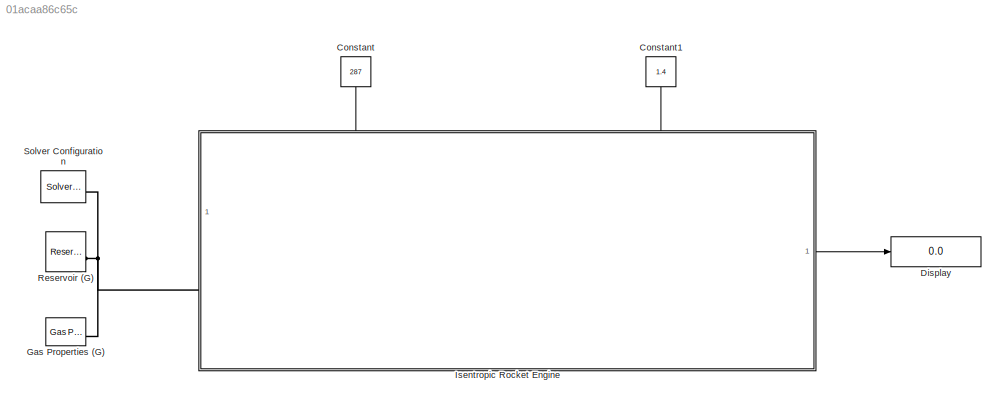
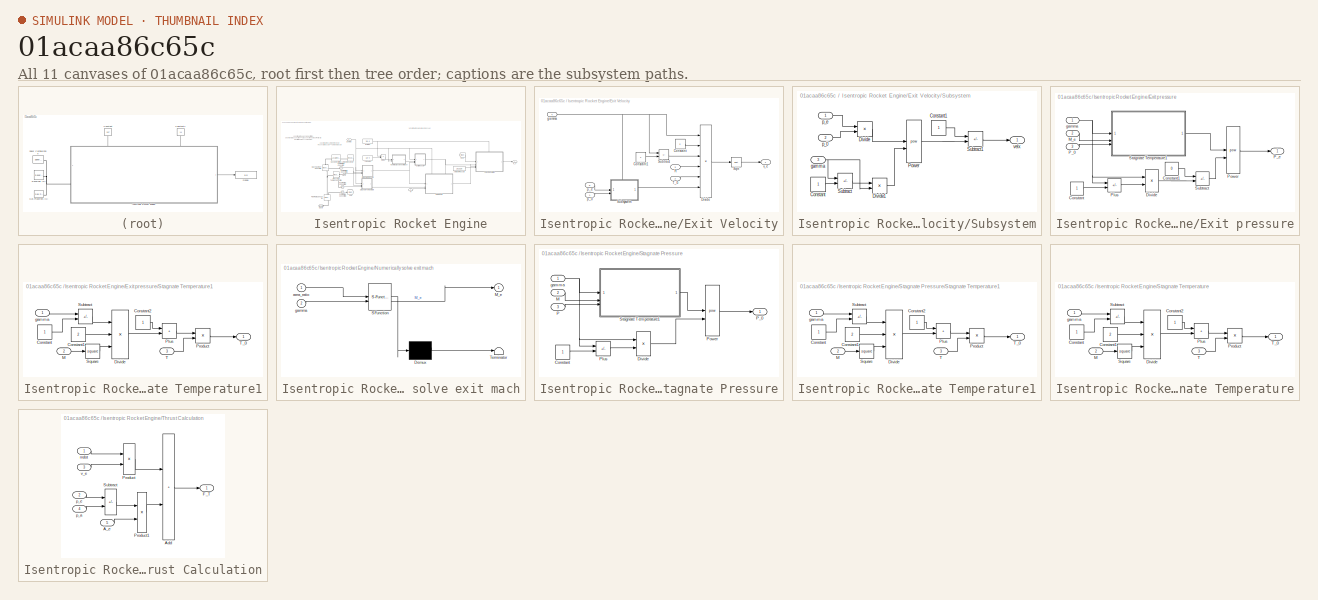
[diagram: thumbnail index - all 11 canvases of the model, root first then tree order]
MODEL slx_01acaa86c65c
KIND model
CONFIG AbsTol = auto
CONFIG EnableMultiTasking = off
CONFIG FixedStep = auto
CONFIG MaxStep = auto
CONFIG MinStep = auto
CONFIG RelTol = 1e-3
CONFIG SampleTimeConstraint = Unconstrained
CONFIG SolverName = VariableStepAuto
CONFIG StartTime = 0.0
CONFIG StopTime = 10.0
BLOCK [Constant] Constant
  NameLocation = left
  Value = 287
BLOCK [Constant] Constant1
  NameLocation = left
  Value = 1.4
BLOCK [Display] Display
  Decimation = 1
BLOCK [Reference] Gas Properties (G)  REF=fl_lib/Gas/Utilities/Gas Properties (G)
  SourceBlock = fl_lib/Gas/Utilities/Gas Properties (G)
  SourceType = Gas Properties (G)
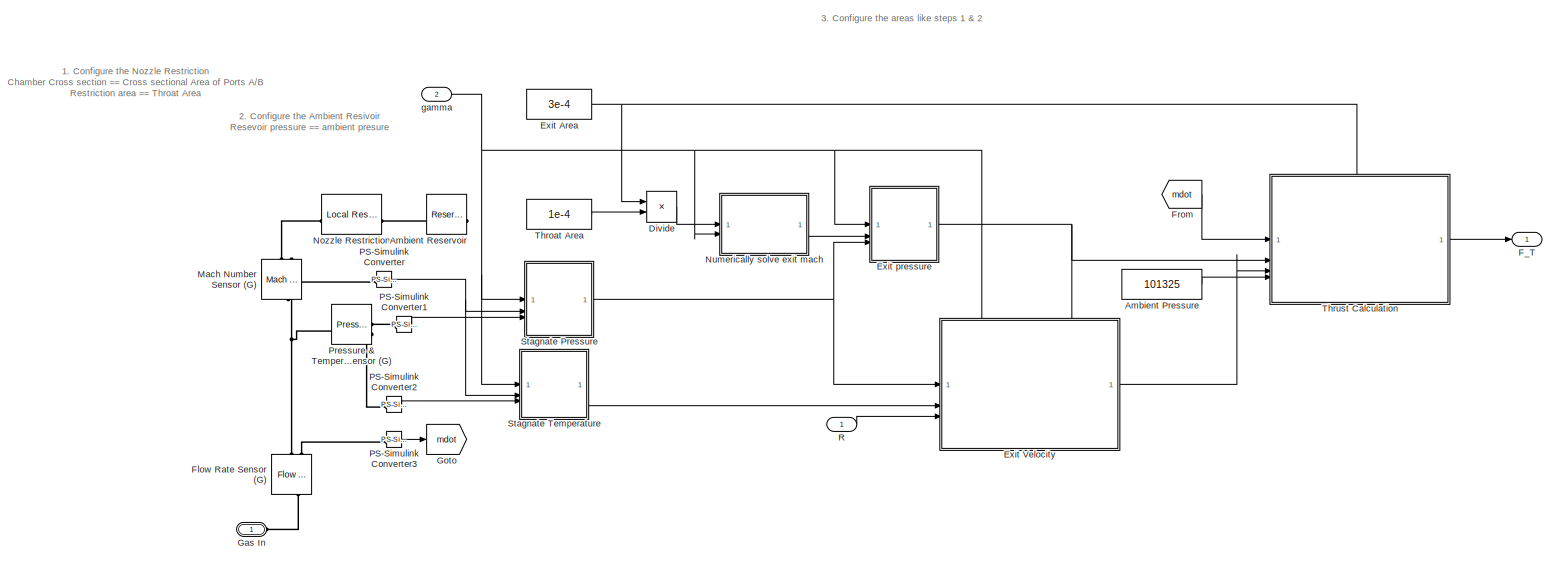
[diagram: Isentropic Rocket Engine - part 1/1, most of the canvas]
BLOCK [SubSystem] Isentropic Rocket Engine
  PortSchema = {"entries":[{"content":{"sides":[{"content":{"connectorIds":["LConn1"]},"type":"ConnectorPlacement.EquallySpacedRectSide","uuid":"e4f0069d-1927-4802-abd1-d8cb29c43114"},{"content":{"connectorIds":["Out1"],"side":"RIGHT"},"type":"ConnectorPlacement.EquallySpacedRectSide","uuid":"0b098238-568a-4ba0-ac8f-0646f834991b"},{"content":{"connectorIds":["In1","In2"],"side":"TOP"},"type":"ConnectorPlacement....<+254ch>
BLOCK [Constant] Isentropic Rocket Engine/Ambient Pressure
  Value = 101325
BLOCK [Reference] Isentropic Rocket Engine/Ambient Reservoir  REF=fl_lib/Gas/Elements/Reservoir (G)
  SourceBlock = fl_lib/Gas/Elements/Reservoir (G)
  SourceType = Reservoir (G)
BLOCK [Product] Isentropic Rocket Engine/Divide
  Inputs = */
BLOCK [Constant] Isentropic Rocket Engine/Exit Area
  Value = 3e-4
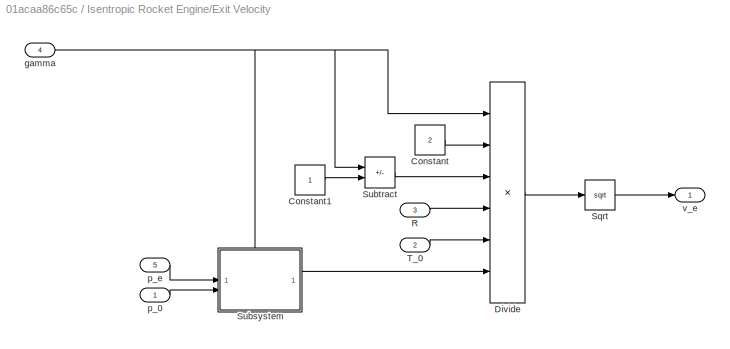
BLOCK [SubSystem] Isentropic Rocket Engine/Exit Velocity
  PortSchema = {"entries":[{"content":{"sides":[{"content":{"connectorIds":["In1","In2","In3"]},"type":"ConnectorPlacement.EquallySpacedRectSide","uuid":"9662f2ce-6bfa-421c-bf6e-2b5a914169e1"},{"content":{"connectorIds":["Out1"],"side":"RIGHT"},"type":"ConnectorPlacement.EquallySpacedRectSide","uuid":"c1c18a70-1766-4293-aa61-9a3b121d2f3e"},{"content":{"connectorIds":["In4","In5"],"side":"TOP"},"type":"ConnectorP...<+263ch>
BLOCK [Constant] Isentropic Rocket Engine/Exit Velocity/Constant
  Value = 2
BLOCK [Constant] Isentropic Rocket Engine/Exit Velocity/Constant1
BLOCK [Product] Isentropic Rocket Engine/Exit Velocity/Divide
  Inputs = **/***
BLOCK [Inport] Isentropic Rocket Engine/Exit Velocity/R
  Port = 3
BLOCK [Sqrt] Isentropic Rocket Engine/Exit Velocity/Sqrt
BLOCK [SubSystem] Isentropic Rocket Engine/Exit Velocity/Subsystem
  PortSchema = {"entries":[{"content":{"sides":[{"content":{"connectorIds":["In1","In2"]},"type":"ConnectorPlacement.EquallySpacedRectSide","uuid":"80528716-0a09-4b76-bb3b-dedd14436ef6"},{"content":{"connectorIds":["Out1"],"side":"RIGHT"},"type":"ConnectorPlacement.EquallySpacedRectSide","uuid":"42bd620c-9479-4472-9344-ba1c598547ab"},{"content":{"connectorIds":["In3"],"side":"TOP"},"type":"ConnectorPlacement.Equ...<+251ch>
BLOCK [Constant] Isentropic Rocket Engine/Exit Velocity/Subsystem/Constant
BLOCK [Constant] Isentropic Rocket Engine/Exit Velocity/Subsystem/Constant1
BLOCK [Product] Isentropic Rocket Engine/Exit Velocity/Subsystem/Divide
  Inputs = */
BLOCK [Product] Isentropic Rocket Engine/Exit Velocity/Subsystem/Divide1
  Inputs = */
BLOCK [Math] Isentropic Rocket Engine/Exit Velocity/Subsystem/Power
  Operator = pow
BLOCK [Sum] Isentropic Rocket Engine/Exit Velocity/Subsystem/Subtract
  IconShape = rectangular
  Inputs = +-
BLOCK [Sum] Isentropic Rocket Engine/Exit Velocity/Subsystem/Subtract1
  IconShape = rectangular
  Inputs = +-
BLOCK [Inport] Isentropic Rocket Engine/Exit Velocity/Subsystem/gamma
  Port = 3
BLOCK [Inport] Isentropic Rocket Engine/Exit Velocity/Subsystem/p_0
  Port = 2
BLOCK [Inport] Isentropic Rocket Engine/Exit Velocity/Subsystem/p_e
BLOCK [Outport] Isentropic Rocket Engine/Exit Velocity/Subsystem/velx
BLOCK [Sum] Isentropic Rocket Engine/Exit Velocity/Subtract
  IconShape = rectangular
  Inputs = +-
BLOCK [Inport] Isentropic Rocket Engine/Exit Velocity/T_0
  Port = 2
BLOCK [Inport] Isentropic Rocket Engine/Exit Velocity/gamma
  Port = 4
BLOCK [Inport] Isentropic Rocket Engine/Exit Velocity/p_0
BLOCK [Inport] Isentropic Rocket Engine/Exit Velocity/p_e
  Port = 5
BLOCK [Outport] Isentropic Rocket Engine/Exit Velocity/v_e
BLOCK [SubSystem] Isentropic Rocket Engine/Exit pressure
BLOCK [Constant] Isentropic Rocket Engine/Exit pressure/Constant
BLOCK [Constant] Isentropic Rocket Engine/Exit pressure/Constant1
  Value = 0
BLOCK [Product] Isentropic Rocket Engine/Exit pressure/Divide
  Inputs = */
BLOCK [Inport] Isentropic Rocket Engine/Exit pressure/M_e
  Port = 2
BLOCK [Inport] Isentropic Rocket Engine/Exit pressure/P_0
  Port = 3
BLOCK [Outport] Isentropic Rocket Engine/Exit pressure/P_e
BLOCK [Sum] Isentropic Rocket Engine/Exit pressure/Plus
  IconShape = rectangular
  Inputs = +-
BLOCK [Math] Isentropic Rocket Engine/Exit pressure/Power
  Operator = pow
BLOCK [SubSystem] Isentropic Rocket Engine/Exit pressure/Stagnate Temperature1
BLOCK [Constant] Isentropic Rocket Engine/Exit pressure/Stagnate Temperature1/Constant
BLOCK [Constant] Isentropic Rocket Engine/Exit pressure/Stagnate Temperature1/Constant1
  Value = 2
BLOCK [Constant] Isentropic Rocket Engine/Exit pressure/Stagnate Temperature1/Constant2
BLOCK [Product] Isentropic Rocket Engine/Exit pressure/Stagnate Temperature1/Divide
  Inputs = */*
BLOCK [Inport] Isentropic Rocket Engine/Exit pressure/Stagnate Temperature1/M
  Port = 2
BLOCK [Sum] Isentropic Rocket Engine/Exit pressure/Stagnate Temperature1/Plus
  IconShape = rectangular
BLOCK [Product] Isentropic Rocket Engine/Exit pressure/Stagnate Temperature1/Product
BLOCK [Math] Isentropic Rocket Engine/Exit pressure/Stagnate Temperature1/Square
  Operator = square
BLOCK [Sum] Isentropic Rocket Engine/Exit pressure/Stagnate Temperature1/Subtract
  IconShape = rectangular
  Inputs = +-
BLOCK [Inport] Isentropic Rocket Engine/Exit pressure/Stagnate Temperature1/T
  Port = 3
BLOCK [Outport] Isentropic Rocket Engine/Exit pressure/Stagnate Temperature1/T_0
BLOCK [Inport] Isentropic Rocket Engine/Exit pressure/Stagnate Temperature1/gamma
BLOCK [Sum] Isentropic Rocket Engine/Exit pressure/Subtract
  IconShape = rectangular
  Inputs = +-
BLOCK [Inport] Isentropic Rocket Engine/Exit pressure/gamma
BLOCK [Outport] Isentropic Rocket Engine/F_T
BLOCK [Reference] Isentropic Rocket Engine/Flow Rate Sensor (G)  REF=fl_lib/Gas/Sensors/Flow Rate Sensor (G)
  NameLocation = right
  SourceBlock = fl_lib/Gas/Sensors/Flow Rate Sensor (G)
  SourceType = Flow Rate Sensor (G)
BLOCK [From] Isentropic Rocket Engine/From
  GotoTag = mdot
BLOCK [PMIOPort] Isentropic Rocket Engine/Gas In
  Side = Left
BLOCK [Goto] Isentropic Rocket Engine/Goto
  GotoTag = mdot
BLOCK [Reference] Isentropic Rocket Engine/Mach Number Sensor (G)  REF=fl_lib/Gas/Sensors/Mach Number Sensor
(G)
  NameLocation = right
  SourceBlock = fl_lib/Gas/Sensors/Mach Number Sensor\n(G)
  SourceType = Mach Number Sensor\n(G)
BLOCK [Reference] Isentropic Rocket Engine/Nozzle Restriction  REF=fl_lib/Gas/Elements/Local Restriction
(G)
  SourceBlock = fl_lib/Gas/Elements/Local Restriction\n(G)
  SourceType = Local Restriction\n(G)
BLOCK [SubSystem] Isentropic Rocket Engine/Numerically solve exit mach
  ErrorFcn = Stateflow.Translate.translate
  PermitHierarchicalResolution = ExplicitOnly
  SFBlockType = MATLAB Function
  TreatAsAtomicUnit = on
BLOCK [Demux] Isentropic Rocket Engine/Numerically solve exit mach/ Demux 
  Outputs = 1
BLOCK [S-Function] Isentropic Rocket Engine/Numerically solve exit mach/ SFunction 
  EnableBusSupport = on
  FunctionName = sf_sfun
  PortCounts = [2 2]
  SFcnIsStateOwnerBlock = off
  SFunctionDeploymentMode = off
  Tag = Stateflow S-Function 2
BLOCK [Terminator] Isentropic Rocket Engine/Numerically solve exit mach/ Terminator 
BLOCK [Outport] Isentropic Rocket Engine/Numerically solve exit mach/M_e
BLOCK [Inport] Isentropic Rocket Engine/Numerically solve exit mach/area_ratio
BLOCK [Inport] Isentropic Rocket Engine/Numerically solve exit mach/gamma
  Port = 2
BLOCK [Reference] Isentropic Rocket Engine/PS-Simulink Converter  REF=nesl_utility/PS-Simulink
Converter
  SourceBlock = nesl_utility/PS-Simulink\nConverter
  SourceType = PS-Simulink\nConverter
BLOCK [Reference] Isentropic Rocket Engine/PS-Simulink Converter1  REF=nesl_utility/PS-Simulink
Converter
  SourceBlock = nesl_utility/PS-Simulink\nConverter
  SourceType = PS-Simulink\nConverter
BLOCK [Reference] Isentropic Rocket Engine/PS-Simulink Converter2  REF=nesl_utility/PS-Simulink
Converter
  SourceBlock = nesl_utility/PS-Simulink\nConverter
  SourceType = PS-Simulink\nConverter
BLOCK [Reference] Isentropic Rocket Engine/PS-Simulink Converter3  REF=nesl_utility/PS-Simulink
Converter
  SourceBlock = nesl_utility/PS-Simulink\nConverter
  SourceType = PS-Simulink\nConverter
BLOCK [Reference] Isentropic Rocket Engine/Pressure & Temperature Sensor (G)  REF=fl_lib/Gas/Sensors/Pressure &
Temperature Sensor
(G)
  SourceBlock = fl_lib/Gas/Sensors/Pressure &\nTemperature Sensor\n(G)
  SourceType = Pressure &\nTemperature Sensor\n(G)
BLOCK [Inport] Isentropic Rocket Engine/R
BLOCK [SubSystem] Isentropic Rocket Engine/Stagnate Pressure
BLOCK [Constant] Isentropic Rocket Engine/Stagnate Pressure/Constant
BLOCK [Product] Isentropic Rocket Engine/Stagnate Pressure/Divide
  Inputs = */
BLOCK [Inport] Isentropic Rocket Engine/Stagnate Pressure/M
  Port = 2
BLOCK [Inport] Isentropic Rocket Engine/Stagnate Pressure/P
  Port = 3
BLOCK [Outport] Isentropic Rocket Engine/Stagnate Pressure/P_0
BLOCK [Sum] Isentropic Rocket Engine/Stagnate Pressure/Plus
  IconShape = rectangular
  Inputs = +-
BLOCK [Math] Isentropic Rocket Engine/Stagnate Pressure/Power
  Operator = pow
BLOCK [SubSystem] Isentropic Rocket Engine/Stagnate Pressure/Stagnate Temperature1
BLOCK [Constant] Isentropic Rocket Engine/Stagnate Pressure/Stagnate Temperature1/Constant
BLOCK [Constant] Isentropic Rocket Engine/Stagnate Pressure/Stagnate Temperature1/Constant1
  Value = 2
BLOCK [Constant] Isentropic Rocket Engine/Stagnate Pressure/Stagnate Temperature1/Constant2
BLOCK [Product] Isentropic Rocket Engine/Stagnate Pressure/Stagnate Temperature1/Divide
  Inputs = */*
BLOCK [Inport] Isentropic Rocket Engine/Stagnate Pressure/Stagnate Temperature1/M
  Port = 2
BLOCK [Sum] Isentropic Rocket Engine/Stagnate Pressure/Stagnate Temperature1/Plus
  IconShape = rectangular
BLOCK [Product] Isentropic Rocket Engine/Stagnate Pressure/Stagnate Temperature1/Product
BLOCK [Math] Isentropic Rocket Engine/Stagnate Pressure/Stagnate Temperature1/Square
  Operator = square
BLOCK [Sum] Isentropic Rocket Engine/Stagnate Pressure/Stagnate Temperature1/Subtract
  IconShape = rectangular
  Inputs = +-
BLOCK [Inport] Isentropic Rocket Engine/Stagnate Pressure/Stagnate Temperature1/T
  Port = 3
BLOCK [Outport] Isentropic Rocket Engine/Stagnate Pressure/Stagnate Temperature1/T_0
BLOCK [Inport] Isentropic Rocket Engine/Stagnate Pressure/Stagnate Temperature1/gamma
BLOCK [Inport] Isentropic Rocket Engine/Stagnate Pressure/gamma
BLOCK [SubSystem] Isentropic Rocket Engine/Stagnate Temperature
BLOCK [Constant] Isentropic Rocket Engine/Stagnate Temperature/Constant
BLOCK [Constant] Isentropic Rocket Engine/Stagnate Temperature/Constant1
  Value = 2
BLOCK [Constant] Isentropic Rocket Engine/Stagnate Temperature/Constant2
BLOCK [Product] Isentropic Rocket Engine/Stagnate Temperature/Divide
  Inputs = */*
BLOCK [Inport] Isentropic Rocket Engine/Stagnate Temperature/M
  Port = 2
BLOCK [Sum] Isentropic Rocket Engine/Stagnate Temperature/Plus
  IconShape = rectangular
BLOCK [Product] Isentropic Rocket Engine/Stagnate Temperature/Product
BLOCK [Math] Isentropic Rocket Engine/Stagnate Temperature/Square
  Operator = square
BLOCK [Sum] Isentropic Rocket Engine/Stagnate Temperature/Subtract
  IconShape = rectangular
  Inputs = +-
BLOCK [Inport] Isentropic Rocket Engine/Stagnate Temperature/T
  Port = 3
BLOCK [Outport] Isentropic Rocket Engine/Stagnate Temperature/T_0
BLOCK [Inport] Isentropic Rocket Engine/Stagnate Temperature/gamma
BLOCK [Constant] Isentropic Rocket Engine/Throat Area
  Value = 1e-4
BLOCK [SubSystem] Isentropic Rocket Engine/Thrust Calculation
  PortSchema = {"entries":[{"content":{"sides":[{"content":{"connectorIds":["In1","In2","In3","In4"]},"type":"ConnectorPlacement.EquallySpacedRectSide","uuid":"9662f2ce-6bfa-421c-bf6e-2b5a914169e1"},{"content":{"connectorIds":["Out1"],"side":"RIGHT"},"type":"ConnectorPlacement.EquallySpacedRectSide","uuid":"c1c18a70-1766-4293-aa61-9a3b121d2f3e"},{"content":{"connectorIds":["In5"],"side":"TOP"},"type":"ConnectorP...<+263ch>
BLOCK [Inport] Isentropic Rocket Engine/Thrust Calculation/A_e
  Port = 5
BLOCK [Sum] Isentropic Rocket Engine/Thrust Calculation/Add
  IconShape = rectangular
BLOCK [Outport] Isentropic Rocket Engine/Thrust Calculation/F_T
BLOCK [Product] Isentropic Rocket Engine/Thrust Calculation/Product
BLOCK [Product] Isentropic Rocket Engine/Thrust Calculation/Product1
BLOCK [Sum] Isentropic Rocket Engine/Thrust Calculation/Subtract
  IconShape = rectangular
  Inputs = +-
BLOCK [Inport] Isentropic Rocket Engine/Thrust Calculation/mdot
BLOCK [Inport] Isentropic Rocket Engine/Thrust Calculation/p_a
  Port = 4
BLOCK [Inport] Isentropic Rocket Engine/Thrust Calculation/p_e
  Port = 2
BLOCK [Inport] Isentropic Rocket Engine/Thrust Calculation/v_e
  Port = 3
BLOCK [Inport] Isentropic Rocket Engine/gamma
  Port = 2
BLOCK [Reference] Reservoir (G)  REF=fl_lib/Gas/Elements/Reservoir (G)
  SourceBlock = fl_lib/Gas/Elements/Reservoir (G)
  SourceType = Reservoir (G)
BLOCK [Reference] Solver Configuration  REF=nesl_utility/Solver
Configuration
  SourceBlock = nesl_utility/Solver\nConfiguration
  SourceType = Solver\nConfiguration
ANNOTATION Isentropic Rocket Engine: 2. Configure the Ambient Resivoir Resevoir pressure == ambient presure
ANNOTATION Isentropic Rocket Engine: 3. Configure the areas like steps 1 & 2
ANNOTATION Isentropic Rocket Engine: 1. Configure the Nozzle Restriction Chamber Cross section == Cross sectional Area of Ports A/B Restriction area == Throat Area
LINE Constant1:1 -> Isentropic Rocket Engine:2
LINE Constant:1 -> Isentropic Rocket Engine:1
LINE Isentropic Rocket Engine/Ambient Pressure:1 -> Isentropic Rocket Engine/Thrust Calculation:4
LINE Isentropic Rocket Engine/Divide:1 -> Isentropic Rocket Engine/Numerically solve exit mach:1
NET Isentropic Rocket Engine/Exit Area:1 -> Isentropic Rocket Engine/Divide:1, Isentropic Rocket Engine/Thrust Calculation:5
LINE Isentropic Rocket Engine/Exit Velocity/Constant1:1 -> Isentropic Rocket Engine/Exit Velocity/Subtract:2
LINE Isentropic Rocket Engine/Exit Velocity/Constant:1 -> Isentropic Rocket Engine/Exit Velocity/Divide:2
LINE Isentropic Rocket Engine/Exit Velocity/Divide:1 -> Isentropic Rocket Engine/Exit Velocity/Sqrt:1
LINE Isentropic Rocket Engine/Exit Velocity/R:1 -> Isentropic Rocket Engine/Exit Velocity/Divide:4
LINE Isentropic Rocket Engine/Exit Velocity/Sqrt:1 -> Isentropic Rocket Engine/Exit Velocity/v_e:1
LINE Isentropic Rocket Engine/Exit Velocity/Subsystem/Constant1:1 -> Isentropic Rocket Engine/Exit Velocity/Subsystem/Subtract1:1
LINE Isentropic Rocket Engine/Exit Velocity/Subsystem/Constant:1 -> Isentropic Rocket Engine/Exit Velocity/Subsystem/Subtract:2
LINE Isentropic Rocket Engine/Exit Velocity/Subsystem/Divide1:1 -> Isentropic Rocket Engine/Exit Velocity/Subsystem/Power:2
LINE Isentropic Rocket Engine/Exit Velocity/Subsystem/Divide:1 -> Isentropic Rocket Engine/Exit Velocity/Subsystem/Power:1
LINE Isentropic Rocket Engine/Exit Velocity/Subsystem/Power:1 -> Isentropic Rocket Engine/Exit Velocity/Subsystem/Subtract1:2
LINE Isentropic Rocket Engine/Exit Velocity/Subsystem/Subtract1:1 -> Isentropic Rocket Engine/Exit Velocity/Subsystem/velx:1
LINE Isentropic Rocket Engine/Exit Velocity/Subsystem/Subtract:1 -> Isentropic Rocket Engine/Exit Velocity/Subsystem/Divide1:1
NET Isentropic Rocket Engine/Exit Velocity/Subsystem/gamma:1 -> Isentropic Rocket Engine/Exit Velocity/Subsystem/Divide1:2, Isentropic Rocket Engine/Exit Velocity/Subsystem/Subtract:1
LINE Isentropic Rocket Engine/Exit Velocity/Subsystem/p_0:1 -> Isentropic Rocket Engine/Exit Velocity/Subsystem/Divide:2
LINE Isentropic Rocket Engine/Exit Velocity/Subsystem/p_e:1 -> Isentropic Rocket Engine/Exit Velocity/Subsystem/Divide:1
LINE Isentropic Rocket Engine/Exit Velocity/Subsystem:1 -> Isentropic Rocket Engine/Exit Velocity/Divide:6
LINE Isentropic Rocket Engine/Exit Velocity/Subtract:1 -> Isentropic Rocket Engine/Exit Velocity/Divide:3
LINE Isentropic Rocket Engine/Exit Velocity/T_0:1 -> Isentropic Rocket Engine/Exit Velocity/Divide:5
NET Isentropic Rocket Engine/Exit Velocity/gamma:1 -> Isentropic Rocket Engine/Exit Velocity/Divide:1, Isentropic Rocket Engine/Exit Velocity/Subsystem:3, Isentropic Rocket Engine/Exit Velocity/Subtract:1
LINE Isentropic Rocket Engine/Exit Velocity/p_0:1 -> Isentropic Rocket Engine/Exit Velocity/Subsystem:2
LINE Isentropic Rocket Engine/Exit Velocity/p_e:1 -> Isentropic Rocket Engine/Exit Velocity/Subsystem:1
LINE Isentropic Rocket Engine/Exit Velocity:1 -> Isentropic Rocket Engine/Thrust Calculation:3
LINE Isentropic Rocket Engine/Exit pressure/Constant1:1 -> Isentropic Rocket Engine/Exit pressure/Subtract:1
LINE Isentropic Rocket Engine/Exit pressure/Constant:1 -> Isentropic Rocket Engine/Exit pressure/Plus:2
LINE Isentropic Rocket Engine/Exit pressure/Divide:1 -> Isentropic Rocket Engine/Exit pressure/Subtract:2
LINE Isentropic Rocket Engine/Exit pressure/M_e:1 -> Isentropic Rocket Engine/Exit pressure/Stagnate Temperature1:2
LINE Isentropic Rocket Engine/Exit pressure/P_0:1 -> Isentropic Rocket Engine/Exit pressure/Stagnate Temperature1:3
LINE Isentropic Rocket Engine/Exit pressure/Plus:1 -> Isentropic Rocket Engine/Exit pressure/Divide:2
LINE Isentropic Rocket Engine/Exit pressure/Power:1 -> Isentropic Rocket Engine/Exit pressure/P_e:1
LINE Isentropic Rocket Engine/Exit pressure/Stagnate Temperature1/Constant1:1 -> Isentropic Rocket Engine/Exit pressure/Stagnate Temperature1/Divide:2
LINE Isentropic Rocket Engine/Exit pressure/Stagnate Temperature1/Constant2:1 -> Isentropic Rocket Engine/Exit pressure/Stagnate Temperature1/Plus:1
LINE Isentropic Rocket Engine/Exit pressure/Stagnate Temperature1/Constant:1 -> Isentropic Rocket Engine/Exit pressure/Stagnate Temperature1/Subtract:2
LINE Isentropic Rocket Engine/Exit pressure/Stagnate Temperature1/Divide:1 -> Isentropic Rocket Engine/Exit pressure/Stagnate Temperature1/Plus:2
LINE Isentropic Rocket Engine/Exit pressure/Stagnate Temperature1/M:1 -> Isentropic Rocket Engine/Exit pressure/Stagnate Temperature1/Square:1
LINE Isentropic Rocket Engine/Exit pressure/Stagnate Temperature1/Plus:1 -> Isentropic Rocket Engine/Exit pressure/Stagnate Temperature1/Product:1
LINE Isentropic Rocket Engine/Exit pressure/Stagnate Temperature1/Product:1 -> Isentropic Rocket Engine/Exit pressure/Stagnate Temperature1/T_0:1
LINE Isentropic Rocket Engine/Exit pressure/Stagnate Temperature1/Square:1 -> Isentropic Rocket Engine/Exit pressure/Stagnate Temperature1/Divide:3
LINE Isentropic Rocket Engine/Exit pressure/Stagnate Temperature1/Subtract:1 -> Isentropic Rocket Engine/Exit pressure/Stagnate Temperature1/Divide:1
LINE Isentropic Rocket Engine/Exit pressure/Stagnate Temperature1/T:1 -> Isentropic Rocket Engine/Exit pressure/Stagnate Temperature1/Product:2
LINE Isentropic Rocket Engine/Exit pressure/Stagnate Temperature1/gamma:1 -> Isentropic Rocket Engine/Exit pressure/Stagnate Temperature1/Subtract:1
LINE Isentropic Rocket Engine/Exit pressure/Stagnate Temperature1:1 -> Isentropic Rocket Engine/Exit pressure/Power:1
LINE Isentropic Rocket Engine/Exit pressure/Subtract:1 -> Isentropic Rocket Engine/Exit pressure/Power:2
NET Isentropic Rocket Engine/Exit pressure/gamma:1 -> Isentropic Rocket Engine/Exit pressure/Divide:1, Isentropic Rocket Engine/Exit pressure/Plus:1, Isentropic Rocket Engine/Exit pressure/Stagnate Temperature1:1
NET Isentropic Rocket Engine/Exit pressure:1 -> Isentropic Rocket Engine/Exit Velocity:5, Isentropic Rocket Engine/Thrust Calculation:2
LINE Isentropic Rocket Engine/From:1 -> Isentropic Rocket Engine/Thrust Calculation:1
LINE Isentropic Rocket Engine/Numerically solve exit mach:1 -> Isentropic Rocket Engine/Exit pressure:2
LINE Isentropic Rocket Engine/PS-Simulink Converter1:1 -> Isentropic Rocket Engine/Stagnate Pressure:3
LINE Isentropic Rocket Engine/PS-Simulink Converter2:1 -> Isentropic Rocket Engine/Stagnate Temperature:3
LINE Isentropic Rocket Engine/PS-Simulink Converter3:1 -> Isentropic Rocket Engine/Goto:1
NET Isentropic Rocket Engine/PS-Simulink Converter:1 -> Isentropic Rocket Engine/Stagnate Pressure:2, Isentropic Rocket Engine/Stagnate Temperature:2
LINE Isentropic Rocket Engine/R:1 -> Isentropic Rocket Engine/Exit Velocity:3
LINE Isentropic Rocket Engine/Stagnate Pressure/Constant:1 -> Isentropic Rocket Engine/Stagnate Pressure/Plus:2
LINE Isentropic Rocket Engine/Stagnate Pressure/Divide:1 -> Isentropic Rocket Engine/Stagnate Pressure/Power:2
LINE Isentropic Rocket Engine/Stagnate Pressure/M:1 -> Isentropic Rocket Engine/Stagnate Pressure/Stagnate Temperature1:2
LINE Isentropic Rocket Engine/Stagnate Pressure/P:1 -> Isentropic Rocket Engine/Stagnate Pressure/Stagnate Temperature1:3
LINE Isentropic Rocket Engine/Stagnate Pressure/Plus:1 -> Isentropic Rocket Engine/Stagnate Pressure/Divide:2
LINE Isentropic Rocket Engine/Stagnate Pressure/Power:1 -> Isentropic Rocket Engine/Stagnate Pressure/P_0:1
LINE Isentropic Rocket Engine/Stagnate Pressure/Stagnate Temperature1/Constant1:1 -> Isentropic Rocket Engine/Stagnate Pressure/Stagnate Temperature1/Divide:2
LINE Isentropic Rocket Engine/Stagnate Pressure/Stagnate Temperature1/Constant2:1 -> Isentropic Rocket Engine/Stagnate Pressure/Stagnate Temperature1/Plus:1
LINE Isentropic Rocket Engine/Stagnate Pressure/Stagnate Temperature1/Constant:1 -> Isentropic Rocket Engine/Stagnate Pressure/Stagnate Temperature1/Subtract:2
LINE Isentropic Rocket Engine/Stagnate Pressure/Stagnate Temperature1/Divide:1 -> Isentropic Rocket Engine/Stagnate Pressure/Stagnate Temperature1/Plus:2
LINE Isentropic Rocket Engine/Stagnate Pressure/Stagnate Temperature1/M:1 -> Isentropic Rocket Engine/Stagnate Pressure/Stagnate Temperature1/Square:1
LINE Isentropic Rocket Engine/Stagnate Pressure/Stagnate Temperature1/Plus:1 -> Isentropic Rocket Engine/Stagnate Pressure/Stagnate Temperature1/Product:1
LINE Isentropic Rocket Engine/Stagnate Pressure/Stagnate Temperature1/Product:1 -> Isentropic Rocket Engine/Stagnate Pressure/Stagnate Temperature1/T_0:1
LINE Isentropic Rocket Engine/Stagnate Pressure/Stagnate Temperature1/Square:1 -> Isentropic Rocket Engine/Stagnate Pressure/Stagnate Temperature1/Divide:3
LINE Isentropic Rocket Engine/Stagnate Pressure/Stagnate Temperature1/Subtract:1 -> Isentropic Rocket Engine/Stagnate Pressure/Stagnate Temperature1/Divide:1
LINE Isentropic Rocket Engine/Stagnate Pressure/Stagnate Temperature1/T:1 -> Isentropic Rocket Engine/Stagnate Pressure/Stagnate Temperature1/Product:2
LINE Isentropic Rocket Engine/Stagnate Pressure/Stagnate Temperature1/gamma:1 -> Isentropic Rocket Engine/Stagnate Pressure/Stagnate Temperature1/Subtract:1
LINE Isentropic Rocket Engine/Stagnate Pressure/Stagnate Temperature1:1 -> Isentropic Rocket Engine/Stagnate Pressure/Power:1
NET Isentropic Rocket Engine/Stagnate Pressure/gamma:1 -> Isentropic Rocket Engine/Stagnate Pressure/Divide:1, Isentropic Rocket Engine/Stagnate Pressure/Plus:1, Isentropic Rocket Engine/Stagnate Pressure/Stagnate Temperature1:1
NET Isentropic Rocket Engine/Stagnate Pressure:1 -> Isentropic Rocket Engine/Exit Velocity:1, Isentropic Rocket Engine/Exit pressure:3
LINE Isentropic Rocket Engine/Stagnate Temperature/Constant1:1 -> Isentropic Rocket Engine/Stagnate Temperature/Divide:2
LINE Isentropic Rocket Engine/Stagnate Temperature/Constant2:1 -> Isentropic Rocket Engine/Stagnate Temperature/Plus:1
LINE Isentropic Rocket Engine/Stagnate Temperature/Constant:1 -> Isentropic Rocket Engine/Stagnate Temperature/Subtract:2
LINE Isentropic Rocket Engine/Stagnate Temperature/Divide:1 -> Isentropic Rocket Engine/Stagnate Temperature/Plus:2
LINE Isentropic Rocket Engine/Stagnate Temperature/M:1 -> Isentropic Rocket Engine/Stagnate Temperature/Square:1
LINE Isentropic Rocket Engine/Stagnate Temperature/Plus:1 -> Isentropic Rocket Engine/Stagnate Temperature/Product:1
LINE Isentropic Rocket Engine/Stagnate Temperature/Product:1 -> Isentropic Rocket Engine/Stagnate Temperature/T_0:1
LINE Isentropic Rocket Engine/Stagnate Temperature/Square:1 -> Isentropic Rocket Engine/Stagnate Temperature/Divide:3
LINE Isentropic Rocket Engine/Stagnate Temperature/Subtract:1 -> Isentropic Rocket Engine/Stagnate Temperature/Divide:1
LINE Isentropic Rocket Engine/Stagnate Temperature/T:1 -> Isentropic Rocket Engine/Stagnate Temperature/Product:2
LINE Isentropic Rocket Engine/Stagnate Temperature/gamma:1 -> Isentropic Rocket Engine/Stagnate Temperature/Subtract:1
LINE Isentropic Rocket Engine/Stagnate Temperature:1 -> Isentropic Rocket Engine/Exit Velocity:2
LINE Isentropic Rocket Engine/Throat Area:1 -> Isentropic Rocket Engine/Divide:2
LINE Isentropic Rocket Engine/Thrust Calculation/A_e:1 -> Isentropic Rocket Engine/Thrust Calculation/Product1:2
LINE Isentropic Rocket Engine/Thrust Calculation/Add:1 -> Isentropic Rocket Engine/Thrust Calculation/F_T:1
LINE Isentropic Rocket Engine/Thrust Calculation/Product1:1 -> Isentropic Rocket Engine/Thrust Calculation/Add:2
LINE Isentropic Rocket Engine/Thrust Calculation/Product:1 -> Isentropic Rocket Engine/Thrust Calculation/Add:1
LINE Isentropic Rocket Engine/Thrust Calculation/Subtract:1 -> Isentropic Rocket Engine/Thrust Calculation/Product1:1
LINE Isentropic Rocket Engine/Thrust Calculation/mdot:1 -> Isentropic Rocket Engine/Thrust Calculation/Product:1
LINE Isentropic Rocket Engine/Thrust Calculation/p_a:1 -> Isentropic Rocket Engine/Thrust Calculation/Subtract:2
LINE Isentropic Rocket Engine/Thrust Calculation/p_e:1 -> Isentropic Rocket Engine/Thrust Calculation/Subtract:1
LINE Isentropic Rocket Engine/Thrust Calculation/v_e:1 -> Isentropic Rocket Engine/Thrust Calculation/Product:2
LINE Isentropic Rocket Engine/Thrust Calculation:1 -> Isentropic Rocket Engine/F_T:1
NET Isentropic Rocket Engine/gamma:1 -> Isentropic Rocket Engine/Exit Velocity:4, Isentropic Rocket Engine/Exit pressure:1, Isentropic Rocket Engine/Numerically solve exit mach:2, Isentropic Rocket Engine/Stagnate Pressure:1, Isentropic Rocket Engine/Stagnate Temperature:1
LINE Isentropic Rocket Engine:1 -> Display:1
PNET net1: Gas Properties (G):RConn1 -- Isentropic Rocket Engine:LConn1 -- Reservoir (G):LConn1 -- Solver Configuration:RConn1
PLINE Isentropic Rocket Engine/Ambient Reservoir:LConn1 -- Isentropic Rocket Engine/Nozzle Restriction:RConn1
PLINE Isentropic Rocket Engine/Flow Rate Sensor (G):LConn1 -- Isentropic Rocket Engine/Gas In:RConn1
PNET net2: Isentropic Rocket Engine/Flow Rate Sensor (G):RConn1 -- Isentropic Rocket Engine/Mach Number Sensor (G):LConn1 -- Isentropic Rocket Engine/Pressure & Temperature Sensor (G):LConn1
PLINE Isentropic Rocket Engine/Flow Rate Sensor (G):RConn2 -- Isentropic Rocket Engine/PS-Simulink Converter3:LConn1
PLINE Isentropic Rocket Engine/Mach Number Sensor (G):RConn1 -- Isentropic Rocket Engine/Nozzle Restriction:LConn1
PLINE Isentropic Rocket Engine/Mach Number Sensor (G):RConn2 -- Isentropic Rocket Engine/PS-Simulink Converter:LConn1
PLINE Isentropic Rocket Engine/PS-Simulink Converter1:LConn1 -- Isentropic Rocket Engine/Pressure & Temperature Sensor (G):RConn1
PLINE Isentropic Rocket Engine/PS-Simulink Converter2:LConn1 -- Isentropic Rocket Engine/Pressure & Temperature Sensor (G):RConn2
note: NET lines group one-source signal fan-out (src -> all destinations, sorted); 1:1 wires keep LINE; PNET lines group multi-terminal physical nets as a canonical sorted terminal list (undirected conserving connections); 2-terminal nets keep the pairwise PLINE form
CHART Isentropic Rocket Engine/Numerically solve exit mach states=1 transitions=1
  STATE_LABEL 'eML_blk_kernel()'
  STATE_LABEL 'SCRIPT:\nfunction M_e = fn(area_ratio, gamma)\n% Solve the area-Mach relation numerically\n\n    f = @(M) (1./M) .* ...\n        ( (2/(gamma+1)) * (1 + (gamma-1)/2 * M.^2) ).^((gamma+1)/(2*(gamma-1))) ...\n        - area_ratio;\n\n    % Guess supersonic\n    M_e = fzero(f, [1.01 10]);\nend'
CHART  states=0 transitions=0
